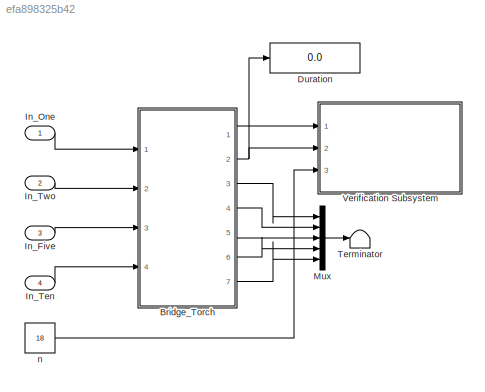
MODEL slx_efa898325b42
KIND model
CONFIG AbsTol = auto
CONFIG EnableMultiTasking = off
CONFIG FixedStep = 1
CONFIG MaxStep = auto
CONFIG MinStep = auto
CONFIG RelTol = 1e-3
CONFIG SampleTimeConstraint = Unconstrained
CONFIG Solver = FixedStepAuto
CONFIG SolverName = FixedStepAuto
CONFIG StartTime = 0.0
CONFIG StopTime = 10.0
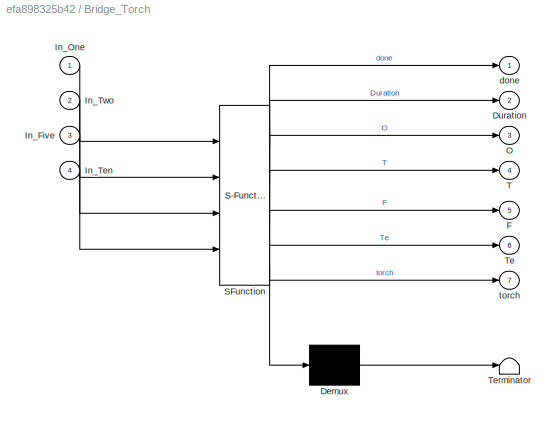
BLOCK [SubSystem] Bridge_Torch
  ErrorFcn = Stateflow.Translate.translate
  PermitHierarchicalResolution = ExplicitOnly
  Ports = [4, 7]
  RequestExecContextInheritance = off
  SFBlockType = Chart
  TreatAsAtomicUnit = on
BLOCK [Demux] Bridge_Torch/ Demux 
  Outputs = 1
  Ports = [1, 1]
BLOCK [S-Function] Bridge_Torch/ SFunction 
  EnableBusSupport = on
  FunctionName = sf_sfun
  PortCounts = [4 8]
  Ports = [4, 8]
  SFcnIsStateOwnerBlock = off
  SFunctionDeploymentMode = off
  Tag = Stateflow S-Function 3
BLOCK [Terminator] Bridge_Torch/ Terminator 
BLOCK [Outport] Bridge_Torch/Duration
  Port = 2
BLOCK [Outport] Bridge_Torch/F
  Port = 5
BLOCK [Inport] Bridge_Torch/In_Five
  Port = 3
BLOCK [Inport] Bridge_Torch/In_One
BLOCK [Inport] Bridge_Torch/In_Ten
  Port = 4
BLOCK [Inport] Bridge_Torch/In_Two
  Port = 2
BLOCK [Outport] Bridge_Torch/O
  Port = 3
BLOCK [Outport] Bridge_Torch/T
  Port = 4
BLOCK [Outport] Bridge_Torch/Te
  Port = 6
BLOCK [Outport] Bridge_Torch/done
BLOCK [Outport] Bridge_Torch/torch
  Port = 7
BLOCK [Display] Duration
  Decimation = 1
  Ports = [1]
BLOCK [Inport] In_Five
  Port = 3
BLOCK [Inport] In_One
BLOCK [Inport] In_Ten
  Port = 4
BLOCK [Inport] In_Two
  Port = 2
BLOCK [Mux] Mux
  DisplayOption = bar
  Inputs = 5
  Ports = [5, 1]
BLOCK [Terminator] Terminator
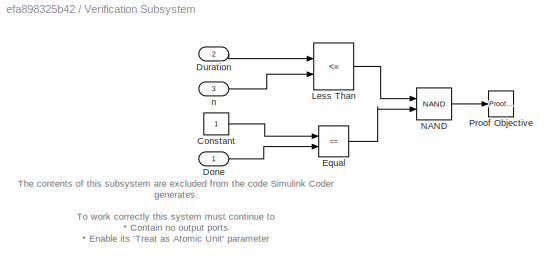
BLOCK [SubSystem] Verification Subsystem
  CopyFcn = sldvsubsys('copy');
  DisableCoverage = on
  LoadFcn = sldvsubsys('check')
  OpenFcn = open_system(gcb,'force');
  Ports = [3]
  PreSaveFcn = set_param(gcb,'SimViewingDevice','on');\nsldvsubsys('check');
  RequestExecContextInheritance = off
  SimViewingDevice = on
  Tag = VerificationSubsystem
  TreatAsAtomicUnit = on
BLOCK [Constant] Verification Subsystem/Constant
BLOCK [Inport] Verification Subsystem/Done
BLOCK [Inport] Verification Subsystem/Duration
  Port = 2
BLOCK [RelationalOperator] Verification Subsystem/Equal
  InputSameDT = off
  Operator = ==
  OutDataTypeStr = boolean
  Ports = [2, 1]
  RndMeth = Simplest
BLOCK [RelationalOperator] Verification Subsystem/Less Than
  InputSameDT = off
  Operator = <=
  OutDataTypeStr = boolean
  Ports = [2, 1]
  RndMeth = Simplest
BLOCK [Logic] Verification Subsystem/NAND
  AllPortsSameDT = off
  IconShape = distinctive
  Operator = NAND
  OutDataTypeStr = boolean
  Ports = [2, 1]
BLOCK [Reference] Verification Subsystem/Proof Objective  REF=sldvlib/Objectives and Constraints/Proof Objective
  AttributesFormatString = %<intervals>
  NameLocation = top
  Ports = [1]
  SourceBlock = sldvlib/Objectives and Constraints/Proof Objective
  SourceProductBaseCode = SL
  SourceType = Design Verifier Proof Objective
BLOCK [Inport] Verification Subsystem/n
  Port = 3
BLOCK [Constant] n
  Value = 18
ANNOTATION Verification Subsystem: The contents of this subsystem are excluded from the code Simulink Coder generates. To work correctly this system must continue to * Contain no output ports * Enable its 'Treat as Atomic Unit' parameter * Specify its 'Mask type' parameter as "VerificationSubsystem"
LINE Bridge_Torch:1 -> Verification Subsystem:1
NET Bridge_Torch:2 -> Duration:1, Verification Subsystem:2
LINE Bridge_Torch:3 -> Mux:1
LINE Bridge_Torch:4 -> Mux:2
LINE Bridge_Torch:5 -> Mux:3
LINE Bridge_Torch:6 -> Mux:4
LINE Bridge_Torch:7 -> Mux:5
LINE In_Five:1 -> Bridge_Torch:3
LINE In_One:1 -> Bridge_Torch:1
LINE In_Ten:1 -> Bridge_Torch:4
LINE In_Two:1 -> Bridge_Torch:2
LINE Mux:1 -> Terminator:1
LINE n:1 -> Verification Subsystem:3
note: NET lines group one-source signal fan-out (src -> all destinations, sorted); 1:1 wires keep LINE
CHART Bridge_Torch states=3 transitions=13
  STATE_LABEL 'Side_A'
  STATE_LABEL 'criteria'
  STATE_LABEL 'SCRIPT:\nfunction criteria()\nsldv.assume(In_One+In_Two+In_Five+In_Ten <= 2);\nsldv.assume(In_One+In_Two+In_Five+In_Ten > 0);\nsldv.assume((In_One && O==torch) || (In_Two && T==torch) || (In_Five && F==torch)|| (In_Ten && Te==torch));\nend'
  STATE_LABEL 'Destination'
CHART  states=0 transitions=0
